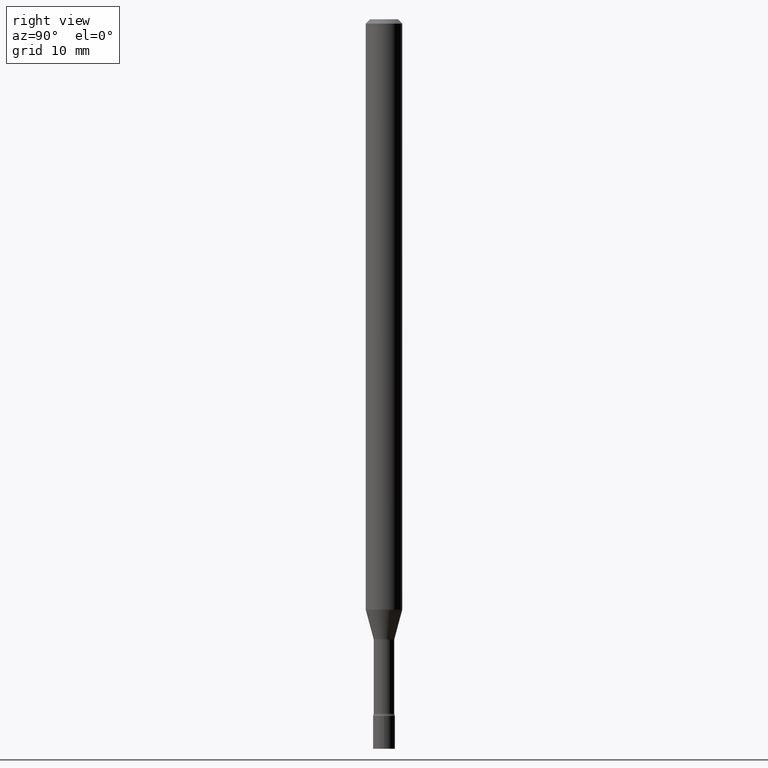
[diagram: clean part render]
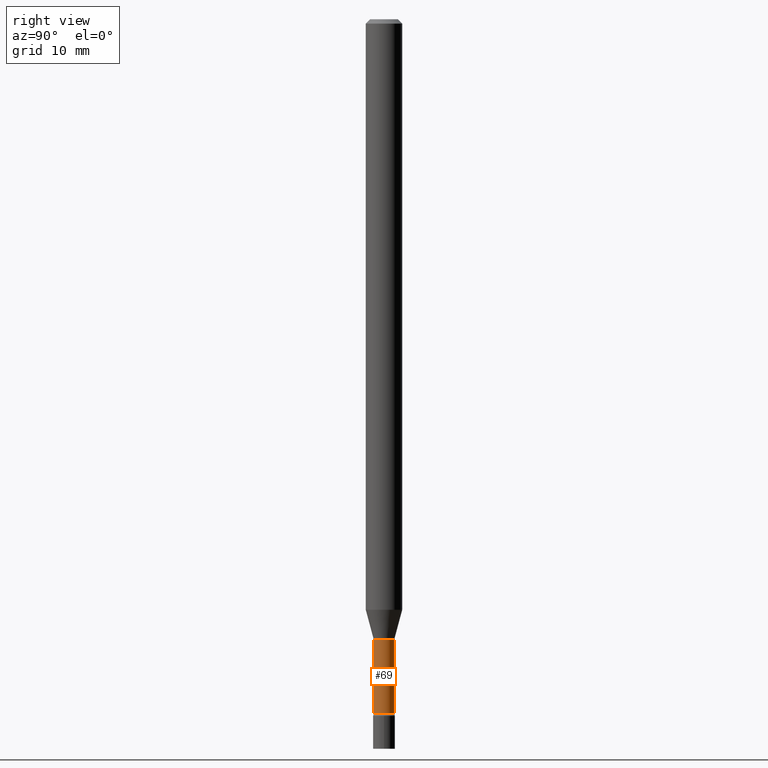
[diagram: same view with one face highlighted and labeled with its STEP entity id]
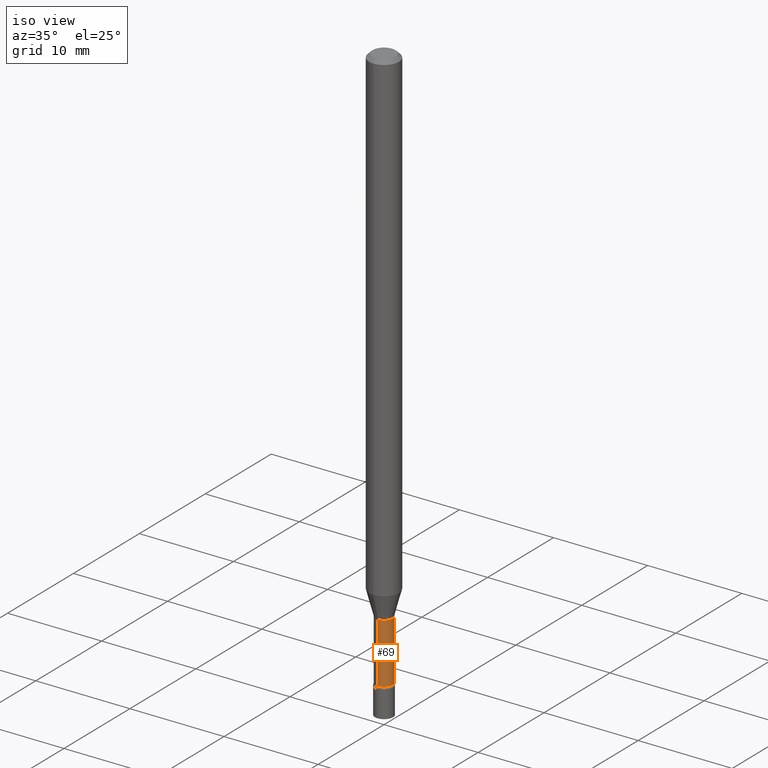
[diagram: same view with one face highlighted and labeled with its STEP entity id]
A machine part, right view. The second image highlights one B-rep face of the part: STEP entity #69.
A second angle (iso view) of the same face is appended — the face is thin or edge-on in the first view.
In plain terms, the highlighted cylindrical surface (edge-blend (fillet) strip) has radius 0.8954 mm, axis along (-0, 0, 1).
Its self-contained STEP definition (entity closure, byte-faithful):
#20 = CARTESIAN_POINT ( 'NONE',  ( -2.461494343883830938E-16, -0.03525000000000835798, -2.379098259685360706 ) ) ;
#52 = AXIS2_PLACEMENT_3D ( 'NONE', #151, #336, #230 ) ;
#55 = VERTEX_POINT ( 'NONE', #395 ) ;
#64 = DIRECTION ( 'NONE',  ( -2.445452959070031637E-29, 3.491504032813937945E-15, 1.000000000000000000 ) ) ;
#69 = ADVANCED_FACE ( 'NONE', ( #122 ), #449, .T. ) ;
#92 = AXIS2_PLACEMENT_3D ( 'NONE', #217, #190, #110 ) ;
#96 = ORIENTED_EDGE ( 'NONE', *, *, #285, .T. ) ;
#104 = CARTESIAN_POINT ( 'NONE',  ( 0.000000000000000000, 0.000000000000000000, 0.000000000000000000 ) ) ;
#106 = LINE ( 'NONE', #344, #158 ) ;
#110 = DIRECTION ( 'NONE',  ( -6.982962677686266711E-15, -1.000000000000000000, 0.000000000000000000 ) ) ;
#119 = AXIS2_PLACEMENT_3D ( 'NONE', #104, #64, #373 ) ;
#122 = FACE_OUTER_BOUND ( 'NONE', #137, .T. ) ;
#124 = CARTESIAN_POINT ( 'NONE',  ( 2.584599201327948014E-16, 0.03524999999999174627, -2.379098259685360706 ) ) ;
#137 = EDGE_LOOP ( 'NONE', ( #96, #514, #350, #399 ) ) ;
#151 = CARTESIAN_POINT ( 'NONE',  ( 5.201416787870728484E-29, -7.426341048123464484E-15, -2.126974787463811190 ) ) ;
#158 = VECTOR ( 'NONE', #258, 39.37007874015748143 ) ;
#159 = VECTOR ( 'NONE', #298, 39.37007874015748143 ) ;
#190 = DIRECTION ( 'NONE',  ( -2.445452959070031637E-29, 3.491504032813937945E-15, 1.000000000000000000 ) ) ;
#211 = VERTEX_POINT ( 'NONE', #20 ) ;
#217 = CARTESIAN_POINT ( 'NONE',  ( 5.817972879065927793E-29, -8.306631168152057468E-15, -2.379098259685360706 ) ) ;
#230 = DIRECTION ( 'NONE',  ( -6.982962677686266711E-15, -1.000000000000000000, 0.000000000000000000 ) ) ;
#246 = EDGE_CURVE ( 'NONE', #492, #55, #359, .T. ) ;
#255 = CARTESIAN_POINT ( 'NONE',  ( 2.504663143554354394E-16, 0.03525000000000001743, -1.230755171566913960E-16 ) ) ;
#258 = DIRECTION ( 'NONE',  ( -2.445452959070031637E-29, 3.491504032813938339E-15, 1.000000000000000000 ) ) ;
#285 = EDGE_CURVE ( 'NONE', #211, #435, #469, .T. ) ;
#289 = LINE ( 'NONE', #255, #159 ) ;
#298 = DIRECTION ( 'NONE',  ( -2.445452959070031637E-29, 3.491504032813938339E-15, 1.000000000000000000 ) ) ;
#299 = EDGE_CURVE ( 'NONE', #435, #55, #289, .T. ) ;
#305 = EDGE_CURVE ( 'NONE', #211, #492, #106, .T. ) ;
#336 = DIRECTION ( 'NONE',  ( -2.445452959070031637E-29, 3.491504032813937945E-15, 1.000000000000000000 ) ) ;
#344 = CARTESIAN_POINT ( 'NONE',  ( -2.461494343884410258E-16, -0.03525000000000001743, 1.230755171566913960E-16 ) ) ;
#350 = ORIENTED_EDGE ( 'NONE', *, *, #246, .F. ) ;
#359 = CIRCLE ( 'NONE', #52, 0.03524999999999998967 ) ;
#373 = DIRECTION ( 'NONE',  ( -6.982962677686266711E-15, -1.000000000000000000, 3.491504032813938734E-15 ) ) ;
#395 = CARTESIAN_POINT ( 'NONE',  ( 2.504663143554935193E-16, 0.03524999999999256506, -2.126974787463811190 ) ) ;
#399 = ORIENTED_EDGE ( 'NONE', *, *, #305, .F. ) ;
#435 = VERTEX_POINT ( 'NONE', #124 ) ;
#449 = CYLINDRICAL_SURFACE ( 'NONE', #119, 0.03525000000000001743 ) ;
#450 = CARTESIAN_POINT ( 'NONE',  ( -2.461494343883888131E-16, -0.03525000000000741429, -2.126974787463811190 ) ) ;
#469 = CIRCLE ( 'NONE', #92, 0.03525000000000005212 ) ;
#492 = VERTEX_POINT ( 'NONE', #450 ) ;
#514 = ORIENTED_EDGE ( 'NONE', *, *, #299, .T. ) ;